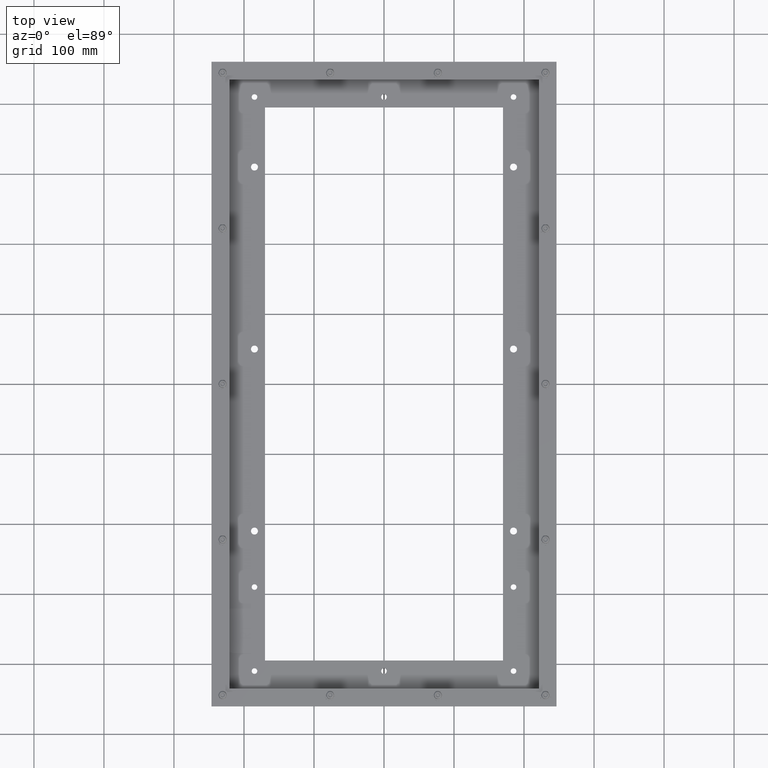
[diagram: clean part render]
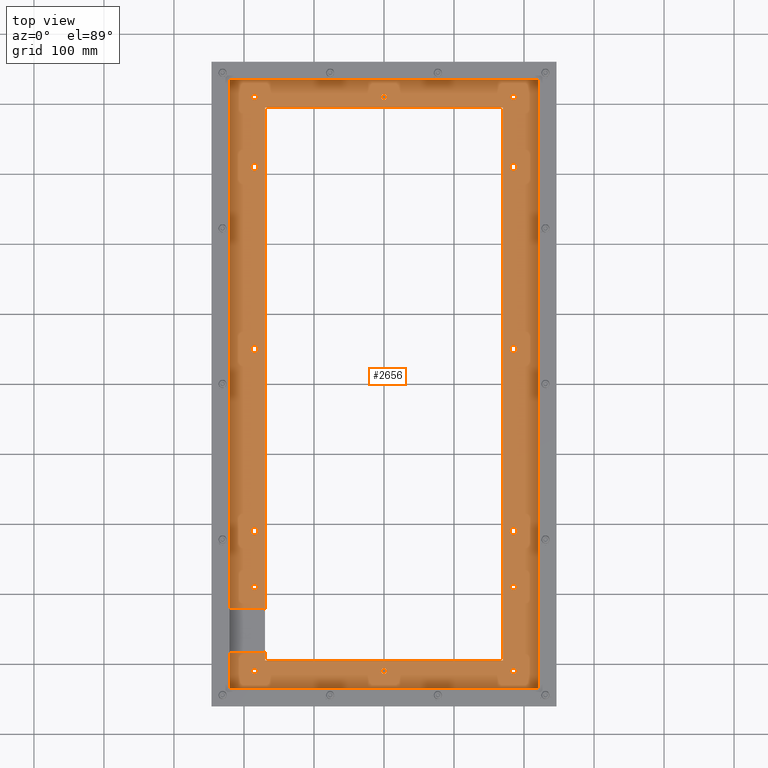
[diagram: same view with one face highlighted and labeled with its STEP entity id]
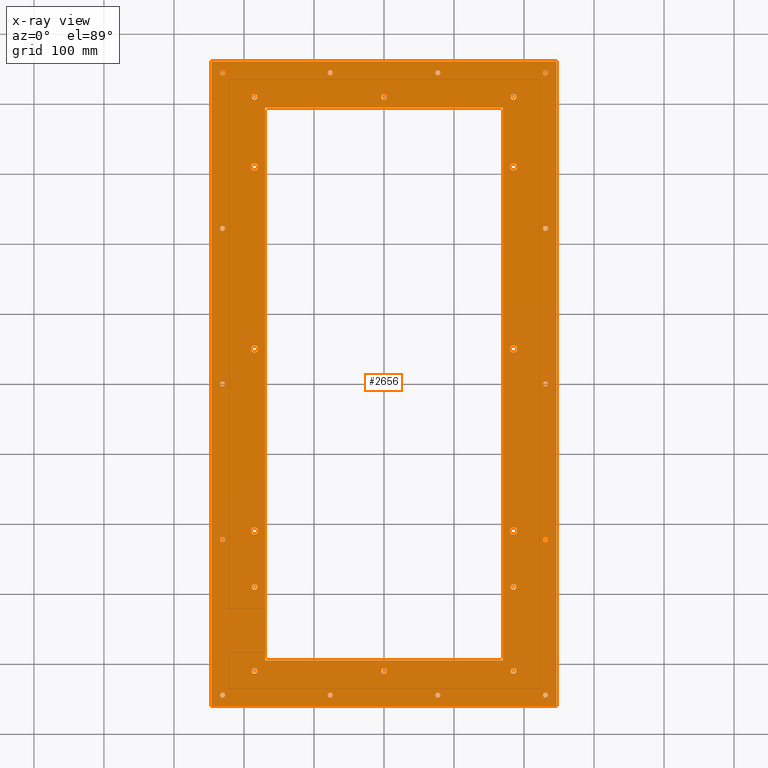
[diagram: x-ray of the same camera — body ghosted, the highlighted face saturated]
A machine part, top view. The second image highlights one B-rep face of the part: STEP entity #2656.
The next image is the same camera in x-ray: the body ghosted, the highlighted face saturated — about 0% of this face is hidden behind the body in this view.
In plain terms, the highlighted planar face has unit normal (0, 0, 1).
Its self-contained STEP definition (entity closure, byte-faithful):
#185=FACE_BOUND('',#737,.T.);
#186=FACE_BOUND('',#738,.T.);
#187=FACE_BOUND('',#739,.T.);
#188=FACE_BOUND('',#740,.T.);
#189=FACE_BOUND('',#741,.T.);
#190=FACE_BOUND('',#742,.T.);
#191=FACE_BOUND('',#743,.T.);
#192=FACE_BOUND('',#744,.T.);
#193=FACE_BOUND('',#745,.T.);
#194=FACE_BOUND('',#746,.T.);
#195=FACE_BOUND('',#747,.T.);
#196=FACE_BOUND('',#748,.T.);
#197=FACE_BOUND('',#749,.T.);
#198=FACE_BOUND('',#750,.T.);
#199=FACE_BOUND('',#751,.T.);
#200=FACE_BOUND('',#752,.T.);
#201=FACE_BOUND('',#753,.T.);
#202=FACE_BOUND('',#754,.T.);
#203=FACE_BOUND('',#755,.T.);
#204=FACE_BOUND('',#756,.T.);
#205=FACE_BOUND('',#757,.T.);
#206=FACE_BOUND('',#758,.T.);
#207=FACE_BOUND('',#759,.T.);
#208=FACE_BOUND('',#760,.T.);
#209=FACE_BOUND('',#761,.T.);
#210=FACE_BOUND('',#762,.T.);
#211=FACE_BOUND('',#763,.T.);
#212=FACE_BOUND('',#764,.T.);
#213=FACE_BOUND('',#765,.T.);
#320=CIRCLE('',#2785,0.1968504);
#322=CIRCLE('',#2788,0.1968504);
#324=CIRCLE('',#2791,0.1968504);
#326=CIRCLE('',#2794,0.1968504);
#328=CIRCLE('',#2797,0.1968504);
#330=CIRCLE('',#2800,0.1968504);
#332=CIRCLE('',#2803,0.1574803);
#334=CIRCLE('',#2806,0.1574803);
#336=CIRCLE('',#2809,0.1574803);
#338=CIRCLE('',#2812,0.1574803);
#340=CIRCLE('',#2815,0.1574803);
#342=CIRCLE('',#2818,0.1574803);
#344=CIRCLE('',#2821,0.1574803);
#346=CIRCLE('',#2824,0.1574803);
#348=CIRCLE('',#2827,0.140625);
#350=CIRCLE('',#2830,0.140625);
#352=CIRCLE('',#2833,0.140625);
#354=CIRCLE('',#2836,0.140625);
#356=CIRCLE('',#2839,0.140625);
#358=CIRCLE('',#2842,0.140625);
#360=CIRCLE('',#2845,0.140625);
#362=CIRCLE('',#2848,0.140625);
#364=CIRCLE('',#2851,0.140625);
#366=CIRCLE('',#2854,0.140625);
#368=CIRCLE('',#2857,0.140625);
#370=CIRCLE('',#2860,0.140625);
#372=CIRCLE('',#2863,0.140625);
#374=CIRCLE('',#2866,0.140625);
#557=FACE_OUTER_BOUND('',#736,.T.);
#736=EDGE_LOOP('',(#1904,#1905,#1906,#1907));
#737=EDGE_LOOP('',(#1908,#1909,#1910,#1911));
#738=EDGE_LOOP('',(#1912));
#739=EDGE_LOOP('',(#1913));
#740=EDGE_LOOP('',(#1914));
#741=EDGE_LOOP('',(#1915));
#742=EDGE_LOOP('',(#1916));
#743=EDGE_LOOP('',(#1917));
#744=EDGE_LOOP('',(#1918));
#745=EDGE_LOOP('',(#1919));
#746=EDGE_LOOP('',(#1920));
#747=EDGE_LOOP('',(#1921));
#748=EDGE_LOOP('',(#1922));
#749=EDGE_LOOP('',(#1923));
#750=EDGE_LOOP('',(#1924));
#751=EDGE_LOOP('',(#1925));
#752=EDGE_LOOP('',(#1926));
#753=EDGE_LOOP('',(#1927));
#754=EDGE_LOOP('',(#1928));
#755=EDGE_LOOP('',(#1929));
#756=EDGE_LOOP('',(#1930));
#757=EDGE_LOOP('',(#1931));
#758=EDGE_LOOP('',(#1932));
#759=EDGE_LOOP('',(#1933));
#760=EDGE_LOOP('',(#1934));
#761=EDGE_LOOP('',(#1935));
#762=EDGE_LOOP('',(#1936));
#763=EDGE_LOOP('',(#1937));
#764=EDGE_LOOP('',(#1938));
#765=EDGE_LOOP('',(#1939));
#987=LINE('',#3890,#1128);
#990=LINE('',#3896,#1131);
#993=LINE('',#3902,#1134);
#996=LINE('',#3906,#1137);
#997=LINE('',#4050,#1138);
#1001=LINE('',#4058,#1142);
#1004=LINE('',#4064,#1145);
#1007=LINE('',#4069,#1148);
#1128=VECTOR('',#3105,13.38583);
#1131=VECTOR('',#3110,31.10236);
#1134=VECTOR('',#3115,13.38583);
#1137=VECTOR('',#3120,31.10236);
#1138=VECTOR('',#3291,36.25);
#1142=VECTOR('',#3297,19.40625);
#1145=VECTOR('',#3302,36.25);
#1148=VECTOR('',#3307,19.40625);
#1269=VERTEX_POINT('',#3887);
#1270=VERTEX_POINT('',#3889);
#1272=VERTEX_POINT('',#3895);
#1274=VERTEX_POINT('',#3901);
#1276=VERTEX_POINT('',#3910);
#1278=VERTEX_POINT('',#3915);
#1280=VERTEX_POINT('',#3920);
#1282=VERTEX_POINT('',#3925);
#1284=VERTEX_POINT('',#3930);
#1286=VERTEX_POINT('',#3935);
#1288=VERTEX_POINT('',#3940);
#1290=VERTEX_POINT('',#3945);
#1292=VERTEX_POINT('',#3950);
#1294=VERTEX_POINT('',#3955);
#1296=VERTEX_POINT('',#3960);
#1298=VERTEX_POINT('',#3965);
#1300=VERTEX_POINT('',#3970);
#1302=VERTEX_POINT('',#3975);
#1304=VERTEX_POINT('',#3980);
#1306=VERTEX_POINT('',#3985);
#1308=VERTEX_POINT('',#3990);
#1310=VERTEX_POINT('',#3995);
#1312=VERTEX_POINT('',#4000);
#1314=VERTEX_POINT('',#4005);
#1316=VERTEX_POINT('',#4010);
#1318=VERTEX_POINT('',#4015);
#1320=VERTEX_POINT('',#4020);
#1322=VERTEX_POINT('',#4025);
#1324=VERTEX_POINT('',#4030);
#1326=VERTEX_POINT('',#4035);
#1328=VERTEX_POINT('',#4040);
#1330=VERTEX_POINT('',#4045);
#1331=VERTEX_POINT('',#4048);
#1332=VERTEX_POINT('',#4049);
#1335=VERTEX_POINT('',#4057);
#1337=VERTEX_POINT('',#4063);
#1509=EDGE_CURVE('',#1270,#1269,#987,.T.);
#1512=EDGE_CURVE('',#1272,#1270,#990,.T.);
#1515=EDGE_CURVE('',#1274,#1272,#993,.T.);
#1518=EDGE_CURVE('',#1269,#1274,#996,.T.);
#1520=EDGE_CURVE('',#1276,#1276,#320,.T.);
#1522=EDGE_CURVE('',#1278,#1278,#322,.T.);
#1524=EDGE_CURVE('',#1280,#1280,#324,.T.);
#1526=EDGE_CURVE('',#1282,#1282,#326,.T.);
#1528=EDGE_CURVE('',#1284,#1284,#328,.T.);
#1530=EDGE_CURVE('',#1286,#1286,#330,.T.);
#1532=EDGE_CURVE('',#1288,#1288,#332,.T.);
#1534=EDGE_CURVE('',#1290,#1290,#334,.T.);
#1536=EDGE_CURVE('',#1292,#1292,#336,.T.);
#1538=EDGE_CURVE('',#1294,#1294,#338,.T.);
#1540=EDGE_CURVE('',#1296,#1296,#340,.T.);
#1542=EDGE_CURVE('',#1298,#1298,#342,.T.);
#1544=EDGE_CURVE('',#1300,#1300,#344,.T.);
#1546=EDGE_CURVE('',#1302,#1302,#346,.T.);
#1548=EDGE_CURVE('',#1304,#1304,#348,.T.);
#1550=EDGE_CURVE('',#1306,#1306,#350,.T.);
#1552=EDGE_CURVE('',#1308,#1308,#352,.T.);
#1554=EDGE_CURVE('',#1310,#1310,#354,.T.);
#1556=EDGE_CURVE('',#1312,#1312,#356,.T.);
#1558=EDGE_CURVE('',#1314,#1314,#358,.T.);
#1560=EDGE_CURVE('',#1316,#1316,#360,.T.);
#1562=EDGE_CURVE('',#1318,#1318,#362,.T.);
#1564=EDGE_CURVE('',#1320,#1320,#364,.T.);
#1566=EDGE_CURVE('',#1322,#1322,#366,.T.);
#1568=EDGE_CURVE('',#1324,#1324,#368,.T.);
#1570=EDGE_CURVE('',#1326,#1326,#370,.T.);
#1572=EDGE_CURVE('',#1328,#1328,#372,.T.);
#1574=EDGE_CURVE('',#1330,#1330,#374,.T.);
#1575=EDGE_CURVE('',#1331,#1332,#997,.T.);
#1579=EDGE_CURVE('',#1332,#1335,#1001,.T.);
#1582=EDGE_CURVE('',#1335,#1337,#1004,.T.);
#1585=EDGE_CURVE('',#1337,#1331,#1007,.T.);
#1904=ORIENTED_EDGE('',*,*,#1575,.F.);
#1905=ORIENTED_EDGE('',*,*,#1585,.F.);
#1906=ORIENTED_EDGE('',*,*,#1582,.F.);
#1907=ORIENTED_EDGE('',*,*,#1579,.F.);
#1908=ORIENTED_EDGE('',*,*,#1509,.T.);
#1909=ORIENTED_EDGE('',*,*,#1518,.T.);
#1910=ORIENTED_EDGE('',*,*,#1515,.T.);
#1911=ORIENTED_EDGE('',*,*,#1512,.T.);
#1912=ORIENTED_EDGE('',*,*,#1520,.T.);
#1913=ORIENTED_EDGE('',*,*,#1522,.T.);
#1914=ORIENTED_EDGE('',*,*,#1524,.T.);
#1915=ORIENTED_EDGE('',*,*,#1526,.T.);
#1916=ORIENTED_EDGE('',*,*,#1528,.T.);
#1917=ORIENTED_EDGE('',*,*,#1530,.T.);
#1918=ORIENTED_EDGE('',*,*,#1532,.T.);
#1919=ORIENTED_EDGE('',*,*,#1534,.T.);
#1920=ORIENTED_EDGE('',*,*,#1536,.T.);
#1921=ORIENTED_EDGE('',*,*,#1538,.T.);
#1922=ORIENTED_EDGE('',*,*,#1540,.T.);
#1923=ORIENTED_EDGE('',*,*,#1542,.T.);
#1924=ORIENTED_EDGE('',*,*,#1544,.T.);
#1925=ORIENTED_EDGE('',*,*,#1546,.T.);
#1926=ORIENTED_EDGE('',*,*,#1548,.T.);
#1927=ORIENTED_EDGE('',*,*,#1550,.T.);
#1928=ORIENTED_EDGE('',*,*,#1552,.T.);
#1929=ORIENTED_EDGE('',*,*,#1554,.T.);
#1930=ORIENTED_EDGE('',*,*,#1556,.T.);
#1931=ORIENTED_EDGE('',*,*,#1558,.T.);
#1932=ORIENTED_EDGE('',*,*,#1560,.T.);
#1933=ORIENTED_EDGE('',*,*,#1562,.T.);
#1934=ORIENTED_EDGE('',*,*,#1564,.T.);
#1935=ORIENTED_EDGE('',*,*,#1566,.T.);
#1936=ORIENTED_EDGE('',*,*,#1568,.T.);
#1937=ORIENTED_EDGE('',*,*,#1570,.T.);
#1938=ORIENTED_EDGE('',*,*,#1572,.T.);
#1939=ORIENTED_EDGE('',*,*,#1574,.T.);
#2442=PLANE('',#2871);
#2656=ADVANCED_FACE('',(#557,#185,#186,#187,#188,#189,#190,#191,#192,#193,
#194,#195,#196,#197,#198,#199,#200,#201,#202,#203,#204,#205,#206,#207,#208,
#209,#210,#211,#212,#213),#2442,.T.);
#2785=AXIS2_PLACEMENT_3D('',#3911,#3125,#3126);
#2788=AXIS2_PLACEMENT_3D('',#3916,#3131,#3132);
#2791=AXIS2_PLACEMENT_3D('',#3921,#3137,#3138);
#2794=AXIS2_PLACEMENT_3D('',#3926,#3143,#3144);
#2797=AXIS2_PLACEMENT_3D('',#3931,#3149,#3150);
#2800=AXIS2_PLACEMENT_3D('',#3936,#3155,#3156);
#2803=AXIS2_PLACEMENT_3D('',#3941,#3161,#3162);
#2806=AXIS2_PLACEMENT_3D('',#3946,#3167,#3168);
#2809=AXIS2_PLACEMENT_3D('',#3951,#3173,#3174);
#2812=AXIS2_PLACEMENT_3D('',#3956,#3179,#3180);
#2815=AXIS2_PLACEMENT_3D('',#3961,#3185,#3186);
#2818=AXIS2_PLACEMENT_3D('',#3966,#3191,#3192);
#2821=AXIS2_PLACEMENT_3D('',#3971,#3197,#3198);
#2824=AXIS2_PLACEMENT_3D('',#3976,#3203,#3204);
#2827=AXIS2_PLACEMENT_3D('',#3981,#3209,#3210);
#2830=AXIS2_PLACEMENT_3D('',#3986,#3215,#3216);
#2833=AXIS2_PLACEMENT_3D('',#3991,#3221,#3222);
#2836=AXIS2_PLACEMENT_3D('',#3996,#3227,#3228);
#2839=AXIS2_PLACEMENT_3D('',#4001,#3233,#3234);
#2842=AXIS2_PLACEMENT_3D('',#4006,#3239,#3240);
#2845=AXIS2_PLACEMENT_3D('',#4011,#3245,#3246);
#2848=AXIS2_PLACEMENT_3D('',#4016,#3251,#3252);
#2851=AXIS2_PLACEMENT_3D('',#4021,#3257,#3258);
#2854=AXIS2_PLACEMENT_3D('',#4026,#3263,#3264);
#2857=AXIS2_PLACEMENT_3D('',#4031,#3269,#3270);
#2860=AXIS2_PLACEMENT_3D('',#4036,#3275,#3276);
#2863=AXIS2_PLACEMENT_3D('',#4041,#3281,#3282);
#2866=AXIS2_PLACEMENT_3D('',#4046,#3287,#3288);
#2871=AXIS2_PLACEMENT_3D('',#4071,#3309,#3310);
#3105=DIRECTION('',(-1.,4.17966214349384E-16,0.));
#3110=DIRECTION('',(-3.5976849930516E-16,-1.,0.));
#3115=DIRECTION('',(1.,-4.17966214349384E-16,0.));
#3120=DIRECTION('',(3.5976849930516E-16,1.,0.));
#3125=DIRECTION('center_axis',(0.,0.,-1.));
#3126=DIRECTION('ref_axis',(-1.,0.,0.));
#3131=DIRECTION('center_axis',(0.,0.,-1.));
#3132=DIRECTION('ref_axis',(-1.,0.,0.));
#3137=DIRECTION('center_axis',(0.,0.,-1.));
#3138=DIRECTION('ref_axis',(-1.,0.,0.));
#3143=DIRECTION('center_axis',(0.,0.,-1.));
#3144=DIRECTION('ref_axis',(-1.,0.,0.));
#3149=DIRECTION('center_axis',(0.,0.,-1.));
#3150=DIRECTION('ref_axis',(-1.,0.,0.));
#3155=DIRECTION('center_axis',(0.,0.,-1.));
#3156=DIRECTION('ref_axis',(-1.,0.,0.));
#3161=DIRECTION('center_axis',(0.,0.,-1.));
#3162=DIRECTION('ref_axis',(-1.,0.,0.));
#3167=DIRECTION('center_axis',(0.,0.,-1.));
#3168=DIRECTION('ref_axis',(-1.,0.,0.));
#3173=DIRECTION('center_axis',(0.,0.,-1.));
#3174=DIRECTION('ref_axis',(-1.,0.,0.));
#3179=DIRECTION('center_axis',(0.,0.,-1.));
#3180=DIRECTION('ref_axis',(-1.,0.,0.));
#3185=DIRECTION('center_axis',(0.,0.,-1.));
#3186=DIRECTION('ref_axis',(-1.,0.,0.));
#3191=DIRECTION('center_axis',(0.,0.,-1.));
#3192=DIRECTION('ref_axis',(-1.,0.,0.));
#3197=DIRECTION('center_axis',(0.,0.,-1.));
#3198=DIRECTION('ref_axis',(-1.,0.,0.));
#3203=DIRECTION('center_axis',(0.,0.,-1.));
#3204=DIRECTION('ref_axis',(-1.,0.,0.));
#3209=DIRECTION('center_axis',(0.,0.,-1.));
#3210=DIRECTION('ref_axis',(-1.,0.,0.));
#3215=DIRECTION('center_axis',(0.,0.,-1.));
#3216=DIRECTION('ref_axis',(-1.,0.,0.));
#3221=DIRECTION('center_axis',(0.,0.,-1.));
#3222=DIRECTION('ref_axis',(-1.,0.,0.));
#3227=DIRECTION('center_axis',(0.,0.,-1.));
#3228=DIRECTION('ref_axis',(-1.,0.,0.));
#3233=DIRECTION('center_axis',(0.,0.,-1.));
#3234=DIRECTION('ref_axis',(-1.,0.,0.));
#3239=DIRECTION('center_axis',(0.,0.,-1.));
#3240=DIRECTION('ref_axis',(-1.,0.,0.));
#3245=DIRECTION('center_axis',(0.,0.,-1.));
#3246=DIRECTION('ref_axis',(-1.,0.,0.));
#3251=DIRECTION('center_axis',(0.,0.,-1.));
#3252=DIRECTION('ref_axis',(-1.,0.,0.));
#3257=DIRECTION('center_axis',(0.,0.,-1.));
#3258=DIRECTION('ref_axis',(-1.,0.,0.));
#3263=DIRECTION('center_axis',(0.,0.,-1.));
#3264=DIRECTION('ref_axis',(-1.,0.,0.));
#3269=DIRECTION('center_axis',(0.,0.,-1.));
#3270=DIRECTION('ref_axis',(-1.,0.,0.));
#3275=DIRECTION('center_axis',(0.,0.,-1.));
#3276=DIRECTION('ref_axis',(-1.,0.,0.));
#3281=DIRECTION('center_axis',(0.,0.,-1.));
#3282=DIRECTION('ref_axis',(-1.,0.,0.));
#3287=DIRECTION('center_axis',(0.,0.,-1.));
#3288=DIRECTION('ref_axis',(-1.,0.,0.));
#3291=DIRECTION('',(7.71699957382677E-17,-1.,0.));
#3297=DIRECTION('',(-1.,-1.44150072554574E-16,0.));
#3302=DIRECTION('',(-2.31509987214803E-16,1.,0.));
#3307=DIRECTION('',(1.,0.,0.));
#3309=DIRECTION('center_axis',(0.,0.,1.));
#3310=DIRECTION('ref_axis',(1.,0.,0.));
#3887=CARTESIAN_POINT('',(-6.69291500000001,-15.5511772,0.125));
#3889=CARTESIAN_POINT('',(6.69291499999999,-15.5511772,0.125));
#3890=CARTESIAN_POINT('',(-3.34645750000001,-15.5511772,0.125));
#3895=CARTESIAN_POINT('',(6.692915,15.5511828,0.125));
#3896=CARTESIAN_POINT('',(6.69291499999999,-7.7755886,0.125));
#3901=CARTESIAN_POINT('',(-6.692915,15.5511828,0.125));
#3902=CARTESIAN_POINT('',(3.3464575,15.5511828,0.125));
#3906=CARTESIAN_POINT('',(-6.692915,7.7755914,0.125));
#3910=CARTESIAN_POINT('',(7.48031540000002,-8.26771399999999,0.125));
#3911=CARTESIAN_POINT('Origin',(7.28346500000002,-8.26771399999999,0.125));
#3915=CARTESIAN_POINT('',(-7.08661459999999,-8.26771399999998,0.125));
#3916=CARTESIAN_POINT('Origin',(-7.28346499999999,-8.26771399999998,0.125));
#3920=CARTESIAN_POINT('',(7.48031540000003,1.968506,0.125));
#3921=CARTESIAN_POINT('Origin',(7.28346500000003,1.968506,0.125));
#3925=CARTESIAN_POINT('',(-7.08661459999999,1.968506,0.125));
#3926=CARTESIAN_POINT('Origin',(-7.28346499999999,1.968506,0.125));
#3930=CARTESIAN_POINT('',(7.48031540000004,12.204726,0.125));
#3931=CARTESIAN_POINT('Origin',(7.28346500000004,12.204726,0.125));
#3935=CARTESIAN_POINT('',(-7.08661459999998,12.204726,0.125));
#3936=CARTESIAN_POINT('Origin',(-7.28346499999998,12.204726,0.125));
#3940=CARTESIAN_POINT('',(0.157480300000017,-16.141729,0.125));
#3941=CARTESIAN_POINT('Origin',(1.67844740730732E-14,-16.141729,0.125));
#3945=CARTESIAN_POINT('',(7.44094530000002,-16.141729,0.125));
#3946=CARTESIAN_POINT('Origin',(7.28346500000002,-16.141729,0.125));
#3950=CARTESIAN_POINT('',(-7.12598469999999,-16.141729,0.125));
#3951=CARTESIAN_POINT('Origin',(-7.28346499999999,-16.141729,0.125));
#3955=CARTESIAN_POINT('',(7.44094530000002,-11.41732,0.125));
#3956=CARTESIAN_POINT('Origin',(7.28346500000002,-11.41732,0.125));
#3960=CARTESIAN_POINT('',(-7.12598469999999,-11.41732,0.125));
#3961=CARTESIAN_POINT('Origin',(-7.28346499999999,-11.41732,0.125));
#3965=CARTESIAN_POINT('',(7.44094530000003,16.141734,0.125));
#3966=CARTESIAN_POINT('Origin',(7.28346500000004,16.141734,0.125));
#3970=CARTESIAN_POINT('',(-7.12598469999998,16.141734,0.125));
#3971=CARTESIAN_POINT('Origin',(-7.28346499999998,16.141734,0.125));
#3975=CARTESIAN_POINT('',(0.157480300000028,16.141734,0.125));
#3976=CARTESIAN_POINT('Origin',(2.79741234551221E-14,16.141734,0.125));
#3980=CARTESIAN_POINT('',(9.21875000000001,-17.5,0.125));
#3981=CARTESIAN_POINT('Origin',(9.07812500000001,-17.5,0.125));
#3985=CARTESIAN_POINT('',(3.16666666666667,-17.5,0.125));
#3986=CARTESIAN_POINT('Origin',(3.02604166666667,-17.5,0.125));
#3990=CARTESIAN_POINT('',(-2.88541666666666,-17.5,0.125));
#3991=CARTESIAN_POINT('Origin',(-3.02604166666666,-17.5,0.125));
#3995=CARTESIAN_POINT('',(-8.93749999999999,-17.5,0.125));
#3996=CARTESIAN_POINT('Origin',(-9.07812499999999,-17.5,0.125));
#4000=CARTESIAN_POINT('',(9.21875,-8.75,0.125));
#4001=CARTESIAN_POINT('Origin',(9.078125,-8.75,0.125));
#4005=CARTESIAN_POINT('',(-8.9375,-8.75,0.125));
#4006=CARTESIAN_POINT('Origin',(-9.07812499999999,-8.75,0.125));
#4010=CARTESIAN_POINT('',(9.21875,2.79741234551221E-15,0.125));
#4011=CARTESIAN_POINT('Origin',(9.078125,2.79741234551221E-15,0.125));
#4015=CARTESIAN_POINT('',(-8.9375,2.79741234551221E-15,0.125));
#4016=CARTESIAN_POINT('Origin',(-9.078125,2.79741234551221E-15,0.125));
#4020=CARTESIAN_POINT('',(9.21875,8.75,0.125));
#4021=CARTESIAN_POINT('Origin',(9.078125,8.75,0.125));
#4025=CARTESIAN_POINT('',(-8.9375,8.75,0.125));
#4026=CARTESIAN_POINT('Origin',(-9.078125,8.75,0.125));
#4030=CARTESIAN_POINT('',(9.21875,17.5,0.125));
#4031=CARTESIAN_POINT('Origin',(9.078125,17.5,0.125));
#4035=CARTESIAN_POINT('',(3.16666666666666,17.5,0.125));
#4036=CARTESIAN_POINT('Origin',(3.02604166666667,17.5,0.125));
#4040=CARTESIAN_POINT('',(-2.88541666666667,17.5,0.125));
#4041=CARTESIAN_POINT('Origin',(-3.02604166666667,17.5,0.125));
#4045=CARTESIAN_POINT('',(-8.9375,17.5,0.125));
#4046=CARTESIAN_POINT('Origin',(-9.078125,17.5,0.125));
#4048=CARTESIAN_POINT('',(9.703125,18.125,0.125));
#4049=CARTESIAN_POINT('',(9.703125,-18.125,0.125));
#4050=CARTESIAN_POINT('',(9.703125,18.125,0.125));
#4057=CARTESIAN_POINT('',(-9.70312499999999,-18.125,0.125));
#4058=CARTESIAN_POINT('',(9.703125,-18.125,0.125));
#4063=CARTESIAN_POINT('',(-9.703125,18.125,0.125));
#4064=CARTESIAN_POINT('',(-9.70312499999999,-18.125,0.125));
#4069=CARTESIAN_POINT('',(-9.703125,18.125,0.125));
#4071=CARTESIAN_POINT('Origin',(6.99353086378051E-16,1.36190187322796E-15,
0.125));